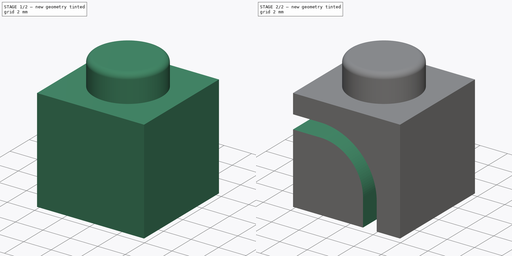
[diagram: build sequence overview — one tinted view per stage of 2, left to right]
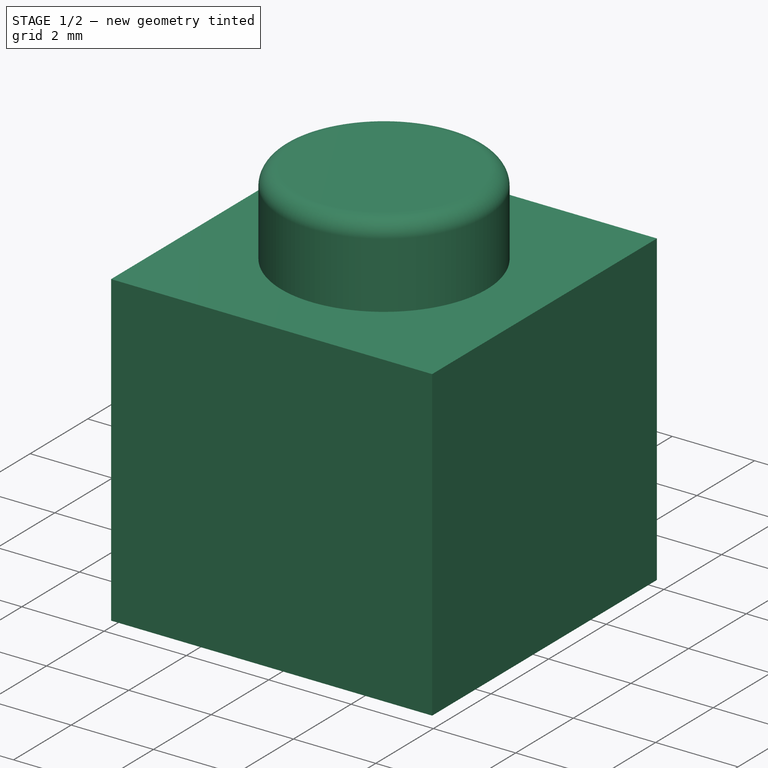
[diagram: stage 1 of 2 — iso view after this stage's code; geometry added in this stage tinted green]
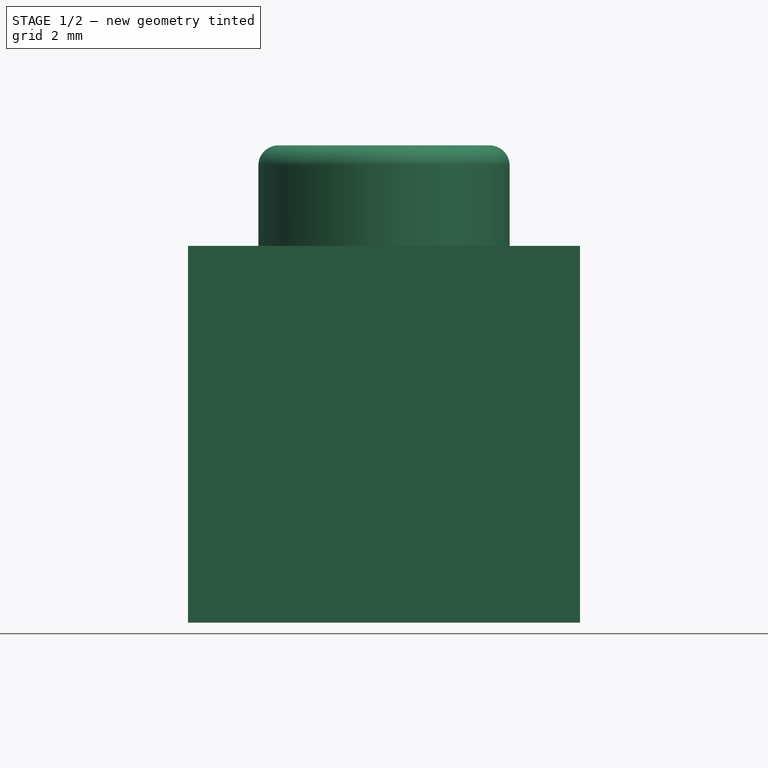
[diagram: stage 1 of 2 — front view after this stage's code; geometry added in this stage tinted green]
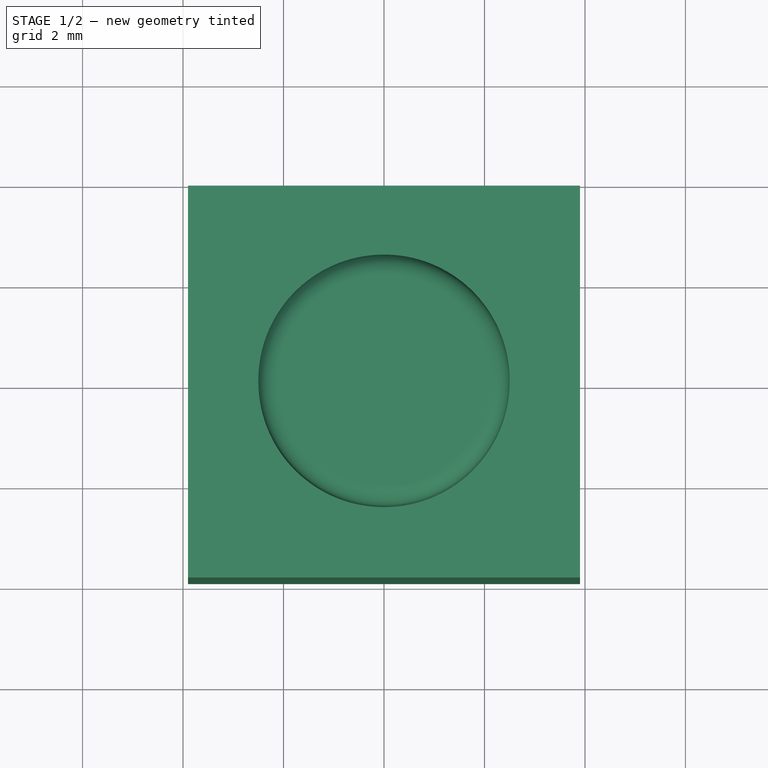
[diagram: stage 1 of 2 — top view after this stage's code; geometry added in this stage tinted green]
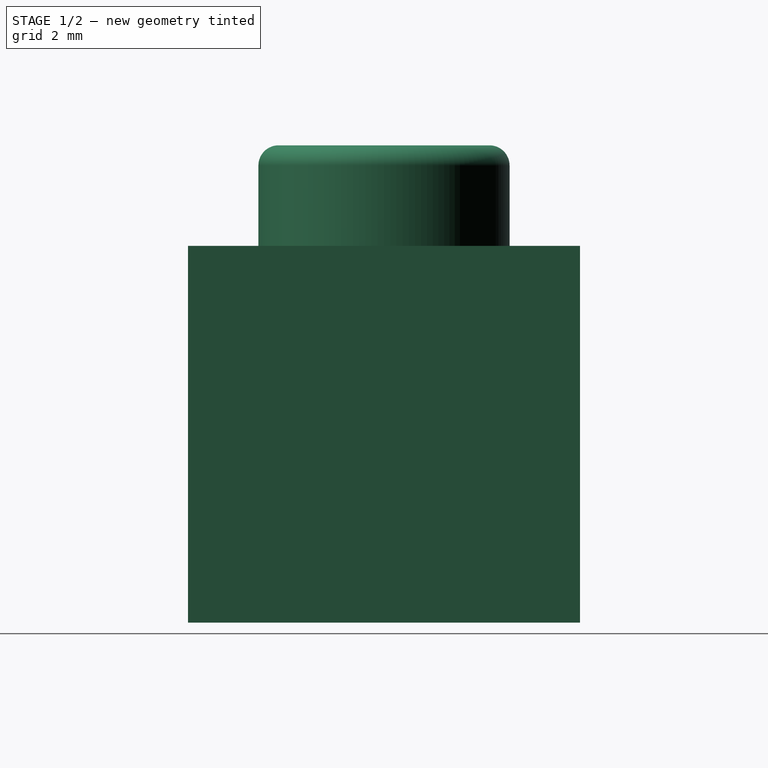
[diagram: stage 1 of 2 — right view after this stage's code; geometry added in this stage tinted green]
FCSTD DOCUMENT  (FreeCAD 1.0R39285 (Git))
Label: KabelhalterEcke
License: Creative Commons Attribution-NonCommercial 4.0
LicenseURL: https://creativecommons.org/licenses/by-nc/4.0/
objects: Sketcher::SketchObject×4, PartDesign::Pocket×2, PartDesign::Revolution×1, PartDesign::Pad×1, PartDesign::Body×1
note: 21 computed .brp shape members not serialized (recipe doc carries the construction recipe); baked Part::Feature solids carry a one-line shape summary decoded from their .brp

FEATURE [Sketcher::SketchObject] Sketch  label="S_Knopf"
  ArcFitTolerance = 1e-06
  AttachmentSupport = -> [XZ_Plane]
  FullyConstrained = true
  MakeInternals = false
  MapMode = 5
  Placement = pos=(0,0,0) rot=(1,0,0;1.5708rad)
  sketch-geometry (6):
    g0: LineSegment StartX=0 StartY=0 StartZ=0 EndX=0 EndY=2 EndZ=0
    g1: LineSegment StartX=0 StartY=2 StartZ=0 EndX=-2.1 EndY=2 EndZ=0
    g2: LineSegment StartX=-2.5 StartY=1.6 StartZ=0 EndX=-2.5 EndY=0 EndZ=0
    g3: LineSegment StartX=-2.5 StartY=0 StartZ=0 EndX=0 EndY=0 EndZ=0
    g4: ArcOfCircle CenterX=-2.1 CenterY=1.6 CenterZ=0 NormalX=0 NormalY=0 NormalZ=1 AngleXU=0 Radius=0.4 StartAngle=1.5708 EndAngle=3.14159
    g5: GeomPoint [constr] X=-2.5 Y=2 Z=0
  constraints (15):
    c: Coincident(g0,g1)
    c: Coincident(g2,g3)
    c: Coincident(g3,g0)
    c: Vertical(g0)
    c: Vertical(g2)
    c: Horizontal(g1)
    c: Horizontal(g3)
    c: Coincident(g0,g-1)
    c: DistanceY(g0,g0) = 2
    c: DistanceX(g5,g0) = 2.5
    c: PointOnObject(g5,g1)
    c: PointOnObject(g5,g2)
    c: Tangent(g1,g4) = -1.5708
    c: Tangent(g2,g4) = -1.5708
    c: Radius(g4) = 0.4
FEATURE [PartDesign::Revolution] Revolution
  Angle = 360
  Angle2 = 60
  Axis = (0,2e-16,1)
  Base = (0,0,0)
  Placement = pos=(0,0,0) rot=(1,0,0;1.5708rad)
  Profile = -> Sketch
  ReferenceAxis = -> Sketch [V_Axis]
  Refine = true
  Suppressed = false
  Type = 0
FEATURE [Sketcher::SketchObject] Sketch001  label="S_Halter"
  ArcFitTolerance = 1e-06
  AttachmentSupport = -> [XY_Plane]
  FullyConstrained = true
  MakeInternals = false
  MapMode = 5
  sketch-geometry (5):
    g0: LineSegment StartX=3.9 StartY=-3.9 StartZ=0 EndX=3.9 EndY=3.9 EndZ=0
    g1: LineSegment StartX=3.9 StartY=3.9 StartZ=0 EndX=-3.9 EndY=3.9 EndZ=0
    g2: LineSegment StartX=-3.9 StartY=3.9 StartZ=0 EndX=-3.9 EndY=-3.9 EndZ=0
    g3: LineSegment StartX=-3.9 StartY=-3.9 StartZ=0 EndX=3.9 EndY=-3.9 EndZ=0
    g4: GeomPoint [constr] X=0 Y=0 Z=0
  constraints (12):
    c: Coincident(g0,g1)
    c: Coincident(g1,g2)
    c: Coincident(g2,g3)
    c: Coincident(g3,g0)
    c: Vertical(g0)
    c: Vertical(g2)
    c: Horizontal(g1)
    c: Horizontal(g3)
    c: Symmetric(g2,g0,g4)
    c: Coincident(g4,g-1)
    c: DistanceX(g1,g0) = 7.8
    c: Equal(g1,g0)
FEATURE [PartDesign::Pad] Pad  label="Halter"
  BaseFeature = -> Revolution
  Direction = (0,0,1)
  Length = 7.5
  Length2 = 10
  Placement = pos=(0,0,0) rot=(1,0,0;1.5708rad)
  Profile = -> Sketch001
  ReferenceAxis = -> Sketch001 [N_Axis]
  Refine = true
  Reversed = true
  Suppressed = false
  Type = 0
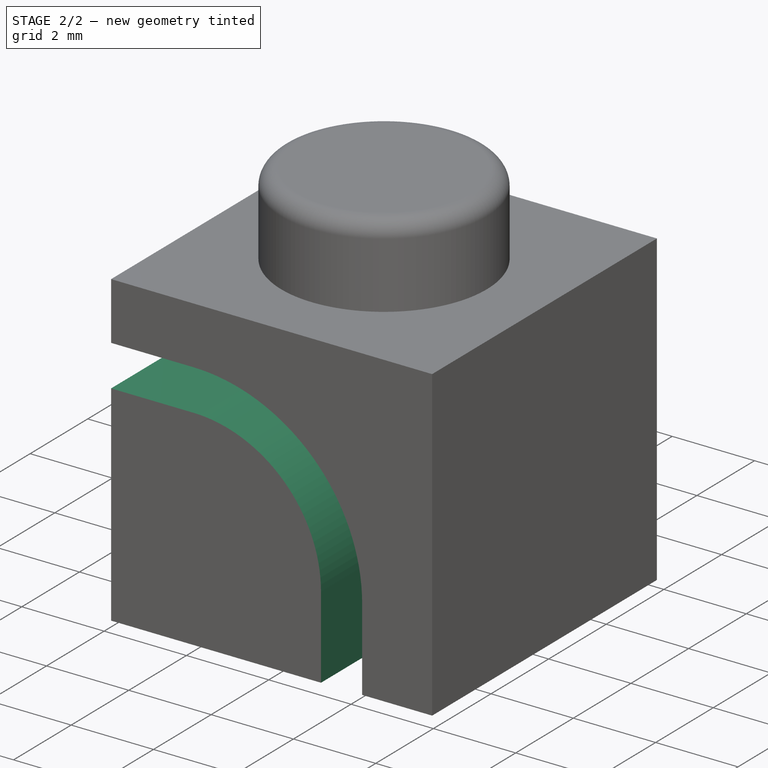
[diagram: stage 2 of 2 — iso view after this stage's code; geometry added in this stage tinted green]
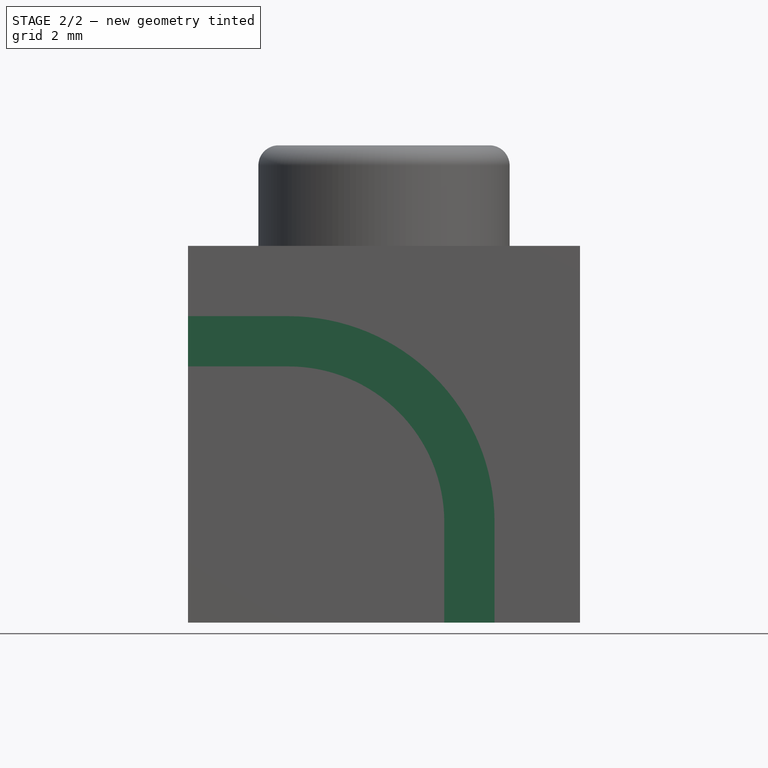
[diagram: stage 2 of 2 — front view after this stage's code; geometry added in this stage tinted green]
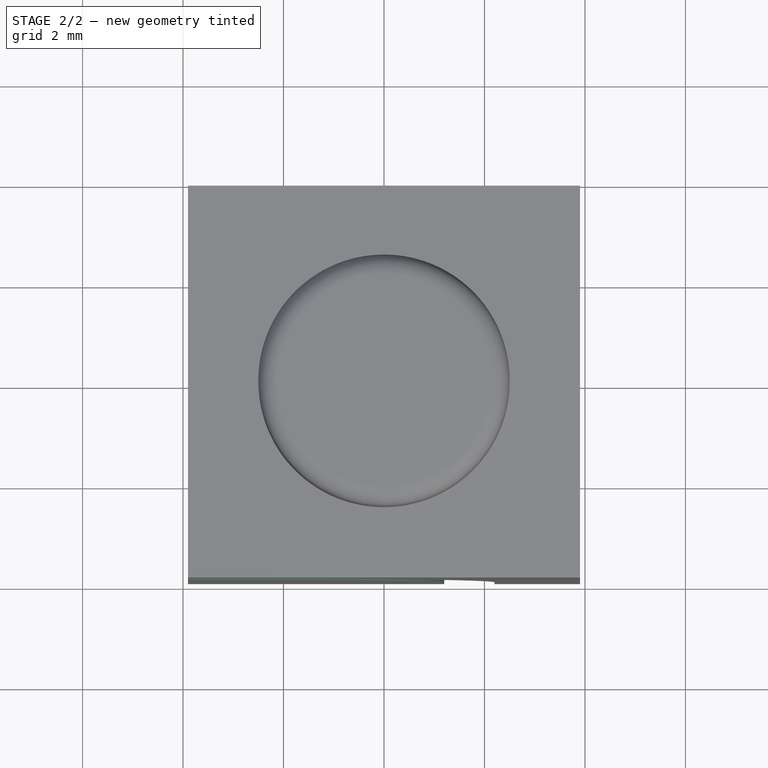
[diagram: stage 2 of 2 — top view after this stage's code; geometry added in this stage tinted green]
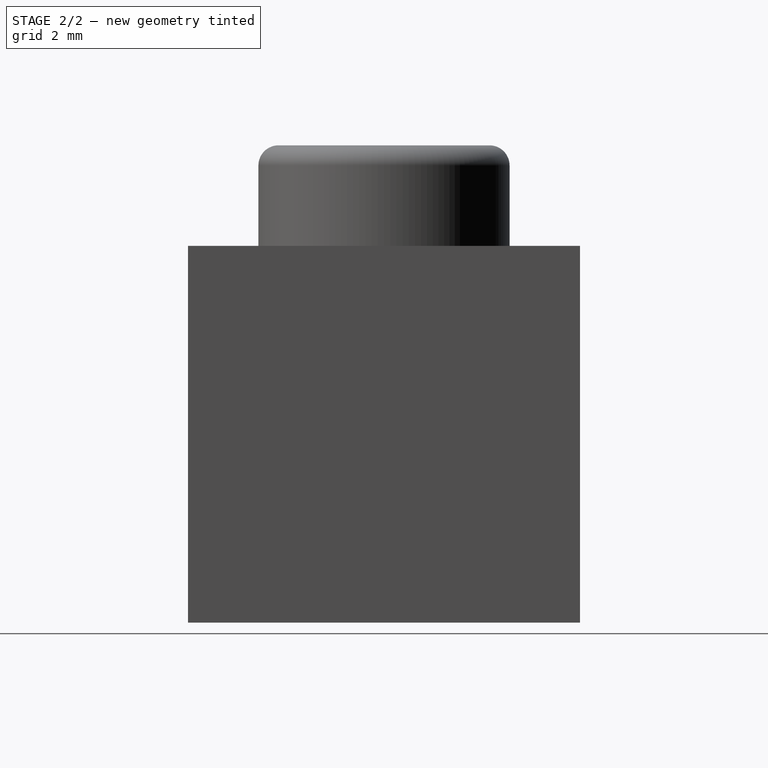
[diagram: stage 2 of 2 — right view after this stage's code; geometry added in this stage tinted green]
FEATURE [Sketcher::SketchObject] Sketch002  label="S_Kabelführung"
  ArcFitTolerance = 1e-06
  AttachmentSupport = -> [XZ_Plane]
  ExternalGeometry = -> [Pad]
  FullyConstrained = true
  MakeInternals = false
  MapMode = 5
  Placement = pos=(0,0,0) rot=(1,0,0;1.5708rad)
  sketch-geometry (12):
    g0: LineSegment [constr] StartX=-3.9 StartY=-3.75 StartZ=0 EndX=3.9 EndY=-3.75 EndZ=0
    g1: LineSegment [constr] StartX=0 StartY=0 StartZ=0 EndX=1e-16 EndY=-7.5 EndZ=0
    g2: LineSegment StartX=-3.9 StartY=-0.7 StartZ=0 EndX=-1.9 EndY=-0.7 EndZ=0
    g3: LineSegment StartX=2.9 StartY=-7.5 StartZ=0 EndX=2.9 EndY=-5.5 EndZ=0
    g4: ArcOfCircle CenterX=-1.9 CenterY=-5.5 CenterZ=0 NormalX=0 NormalY=0 NormalZ=1 AngleXU=0 Radius=4.8 StartAngle=0 EndAngle=1.5708
    g5: LineSegment [constr] StartX=-1.9 StartY=-9e-16 StartZ=0 EndX=-1.9 EndY=-7.5 EndZ=0
    g6: LineSegment [constr] StartX=3.9 StartY=-5.5 StartZ=0 EndX=-3.9 EndY=-5.5 EndZ=0
    g7: LineSegment StartX=-3.9 StartY=-2.9 StartZ=0 EndX=-1.9 EndY=-2.9 EndZ=0
    g8: LineSegment StartX=0.7 StartY=-7.5 StartZ=0 EndX=0.7 EndY=-5.5 EndZ=0
    g9: ArcOfCircle CenterX=-1.9 CenterY=-5.5 CenterZ=0 NormalX=0 NormalY=0 NormalZ=1 AngleXU=0 Radius=2.6 StartAngle=0 EndAngle=1.5708
    g10: LineSegment StartX=-3.9 StartY=-0.7 StartZ=0 EndX=-3.9 EndY=-2.9 EndZ=0
    g11: LineSegment StartX=0.7 StartY=-7.5 StartZ=0 EndX=2.9 EndY=-7.5 EndZ=0
  constraints (37):
    c: Symmetric(g-3,g-3,g0)
    c: Symmetric(g-5,g-5,g0)
    c: Coincident(g1,g-1)
    c: Symmetric(g-6,g-6,g1)
    c: PointOnObject(g2,g-3)
    c: Horizontal(g2)
    c: PointOnObject(g3,g-6)
    c: Vertical(g3)
    c: Equal(g2,g3)
    c: Coincident(g4,g2)
    c: Coincident(g4,g3)
    c: PointOnObject(g5,g-4)
    c: PointOnObject(g5,g-6)
    c: Vertical(g5)
    c: PointOnObject(g6,g-5)
    c: PointOnObject(g6,g-3)
    c: Horizontal(g6)
    c: PointOnObject(g3,g6)
    c: PointOnObject(g2,g5)
    c: DistanceX(g-6,g5) = 2
    c: PointOnObject(g4,g6)
    c: PointOnObject(g4,g5)
    c: DistanceX(g3,g-6) = 1
    c: PointOnObject(g7,g-3)
    c: PointOnObject(g7,g5)
    c: Horizontal(g7)
    c: PointOnObject(g8,g-6)
    c: PointOnObject(g8,g6)
    c: Vertical(g8)
    c: Coincident(g9,g4)
    c: Coincident(g9,g8)
    c: Coincident(g9,g7)
    c: DistanceX(g8,g3) = 2.2
    c: Coincident(g10,g2)
    c: Coincident(g10,g7)
    c: Coincident(g11,g8)
    c: Coincident(g11,g3)
FEATURE [PartDesign::Pocket] Pocket
  BaseFeature = -> Pad
  Direction = (0,1,-2e-16)
  Length = 4.2
  Length2 = 5
  Midplane = true
  Placement = pos=(0,0,0) rot=(1,0,0;1.5708rad)
  Profile = -> Sketch002
  ReferenceAxis = -> Sketch002 [N_Axis]
  Refine = true
  Suppressed = false
  Type = 0
FEATURE [Sketcher::SketchObject] Sketch003  label="S_Kabeleinlass"
  ArcFitTolerance = 1e-06
  AttachmentSupport = -> [XZ_Plane]
  ExternalGeometry = -> [Sketch002,Pad]
  FullyConstrained = true
  MakeInternals = false
  MapMode = 5
  Placement = pos=(0,0,0) rot=(1,0,0;1.5708rad)
  sketch-geometry (10):
    g0: LineSegment [constr] StartX=-1.9 StartY=-0.7 StartZ=0 EndX=-1.9 EndY=-7.5 EndZ=0
    g1: LineSegment [constr] StartX=2.9 StartY=-5.5 StartZ=0 EndX=-3.9 EndY=-5.5 EndZ=0
    g2: LineSegment StartX=-1.9 StartY=-1.4 StartZ=0 EndX=-3.9 EndY=-1.4 EndZ=0
    g3: LineSegment StartX=-3.9 StartY=-1.4 StartZ=0 EndX=-3.9 EndY=-2.4 EndZ=0
    g4: LineSegment StartX=-3.9 StartY=-2.4 StartZ=0 EndX=-1.9 EndY=-2.4 EndZ=0
    g5: LineSegment StartX=1.2 StartY=-5.5 StartZ=0 EndX=1.2 EndY=-7.5 EndZ=0
    g6: LineSegment StartX=1.2 StartY=-7.5 StartZ=0 EndX=2.2 EndY=-7.5 EndZ=0
    g7: LineSegment StartX=2.2 StartY=-7.5 StartZ=0 EndX=2.2 EndY=-5.5 EndZ=0
    g8: ArcOfCircle CenterX=-1.9 CenterY=-5.5 CenterZ=0 NormalX=0 NormalY=0 NormalZ=1 AngleXU=0 Radius=3.1 StartAngle=0 EndAngle=1.5708
    g9: ArcOfCircle CenterX=-1.9 CenterY=-5.5 CenterZ=0 NormalX=0 NormalY=0 NormalZ=1 AngleXU=0 Radius=4.1 StartAngle=0 EndAngle=1.5708
  constraints (31):
    c: Coincident(g0,g-3)
    c: PointOnObject(g0,g-12)
    c: Vertical(g0)
    c: Coincident(g1,g-8)
    c: PointOnObject(g1,g-9)
    c: Horizontal(g1)
    c: PointOnObject(g2,g0)
    c: PointOnObject(g2,g-9)
    c: Horizontal(g2)
    c: Coincident(g2,g3)
    c: PointOnObject(g3,g-9)
    c: Coincident(g3,g4)
    c: PointOnObject(g4,g0)
    c: Horizontal(g4)
    c: PointOnObject(g5,g1)
    c: PointOnObject(g5,g-12)
    c: Vertical(g5)
    c: Coincident(g5,g6)
    c: PointOnObject(g6,g-12)
    c: Coincident(g6,g7)
    c: PointOnObject(g7,g1)
    c: Vertical(g7)
    c: PointOnObject(g8,g0)
    c: Coincident(g8,g4)
    c: Coincident(g8,g5)
    c: Coincident(g9,g8)
    c: Coincident(g9,g2)
    c: Coincident(g9,g7)
    c: PointOnObject(g8,g1)
    c: DistanceY(g3,g2) = 1
    c: DistanceY(g-5,g3) = 0.5
FEATURE [PartDesign::Pocket] Pocket001
  BaseFeature = -> Pocket
  Direction = (0,1,-2e-16)
  Length = 5
  Length2 = 5
  Placement = pos=(0,0,0) rot=(1,0,0;1.5708rad)
  Profile = -> Sketch003
  ReferenceAxis = -> Sketch003 [N_Axis]
  Refine = true
  Reversed = true
  Suppressed = false
  Type = 0
FEATURE [PartDesign::Body] Body  label="KabelhalterEcke"
  AllowCompound = false
  Group = -> [Sketch,Revolution,Sketch001,Pad,Sketch002,Pocket,Sketch003,Pocket001]
  Origin = -> Origin
  Tip = -> Pocket001
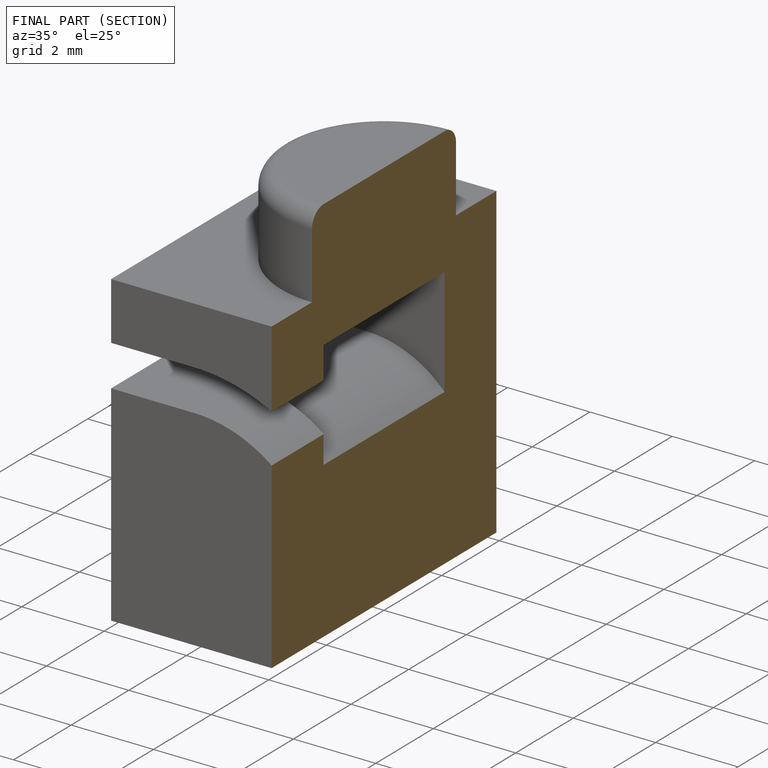
[diagram: finished part — half-section view (interior)]
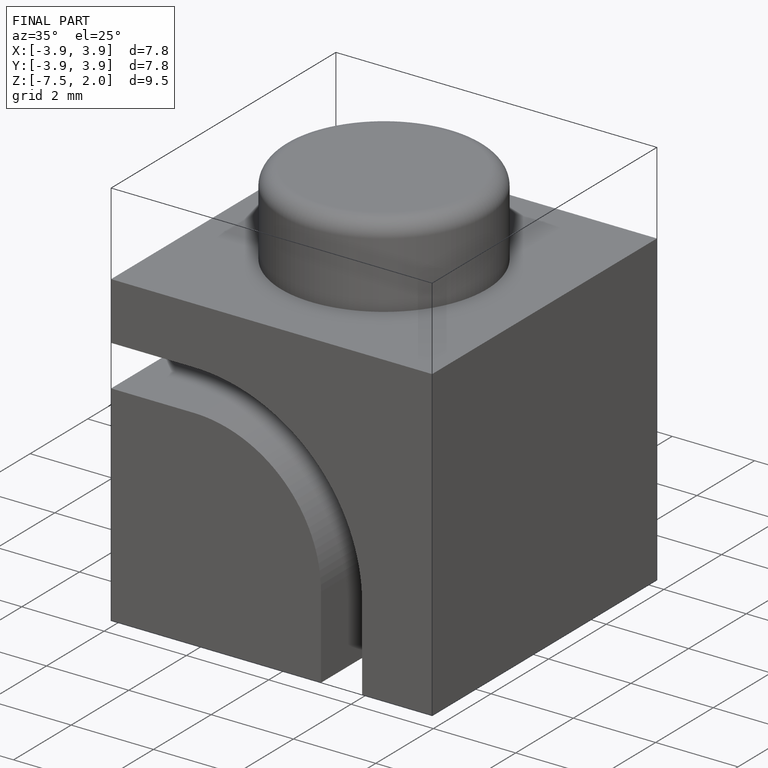
[diagram: finished part — iso view with bounding-box wireframe]
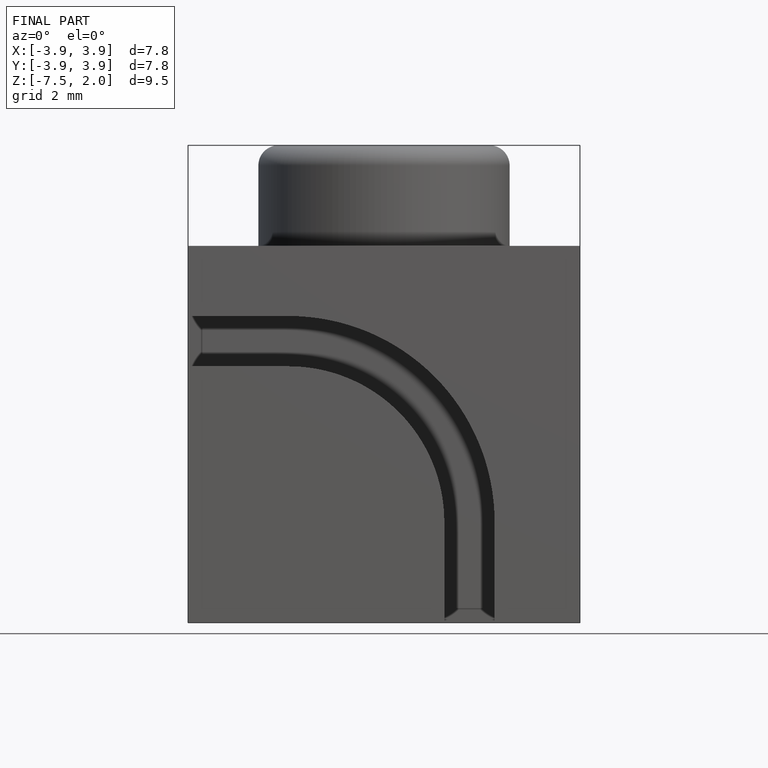
[diagram: finished part — front view with bounding-box wireframe]
